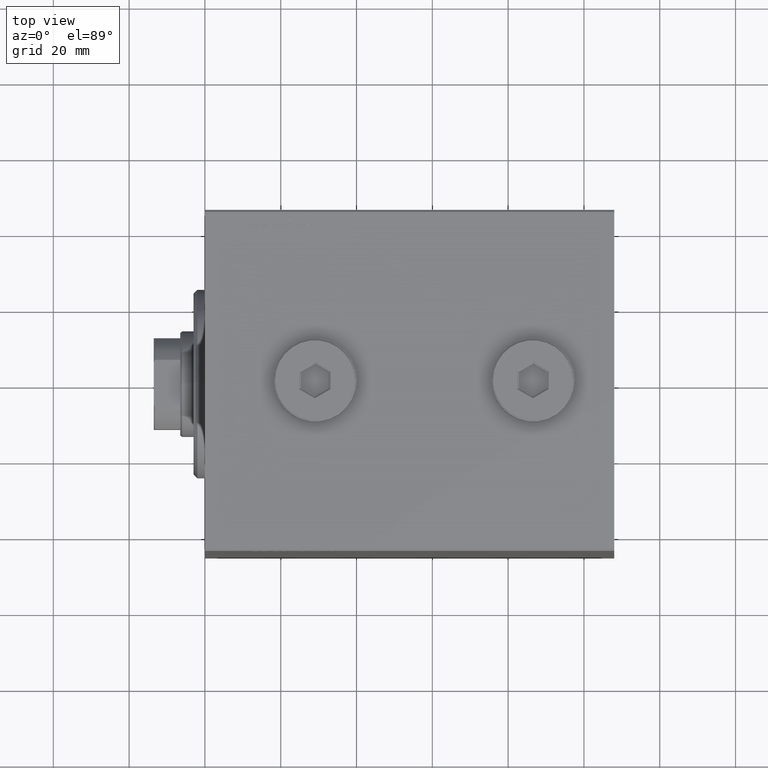
[diagram: clean part render]
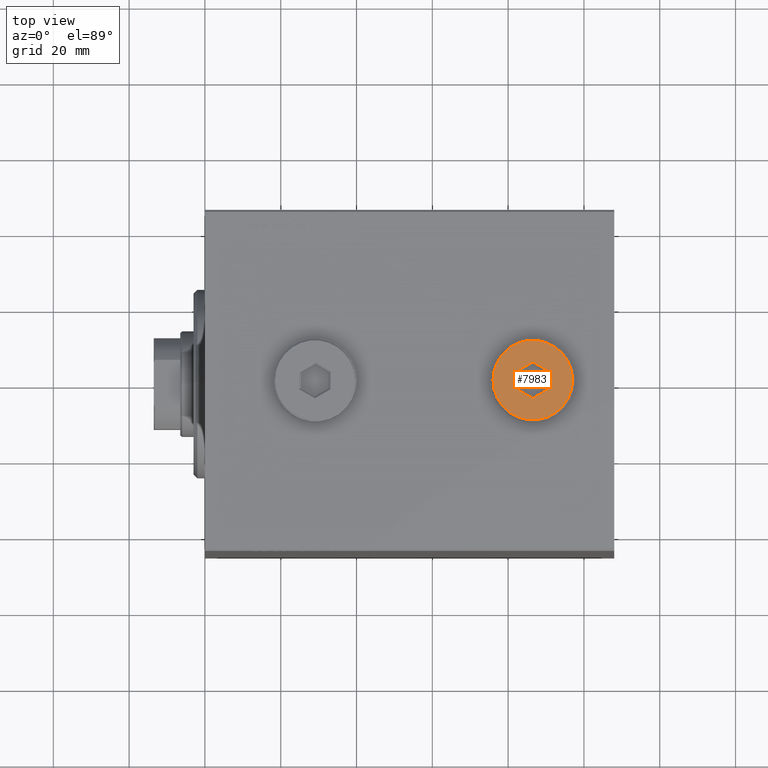
[diagram: same view with one face highlighted and labeled with its STEP entity id]
A machine part, top view. The second image highlights one B-rep face of the part: STEP entity #7983.
In plain terms, the highlighted planar face has unit normal (0, 0, 1).
Its self-contained STEP definition (entity closure, byte-faithful):
#517 = VECTOR ( 'NONE', #5359, 1000.000000000000000 ) ;
#1114 = EDGE_CURVE ( 'NONE', #35696, #22337, #14860, .T. ) ;
#1333 = VERTEX_POINT ( 'NONE', #39071 ) ;
#1653 = AXIS2_PLACEMENT_3D ( 'NONE', #33069, #29368, #18994 ) ;
#1733 = DIRECTION ( 'NONE',  ( 1.024305408229881337E-16, 1.000000000000000000, 0.000000000000000000 ) ) ;
#1890 = PLANE ( 'NONE',  #1653 ) ;
#2163 = DIRECTION ( 'NONE',  ( 1.024305408229881337E-16, -1.000000000000000000, 0.000000000000000000 ) ) ;
#2608 = CARTESIAN_POINT ( 'NONE',  ( 4.166666666666664298, -2.116950987028627384, 5.000000000000000000 ) ) ;
#2849 = LINE ( 'NONE', #2608, #12324 ) ;
#5359 = DIRECTION ( 'NONE',  ( -0.8660254037844387076, -0.4999999999999998335, 0.000000000000000000 ) ) ;
#5938 = EDGE_LOOP ( 'NONE', ( #14188, #38548 ) ) ;
#6276 = CARTESIAN_POINT ( 'NONE',  ( 10.50000000000000178, 1.316495309083404815E-15, 5.000000000000000000 ) ) ;
#7466 = VECTOR ( 'NONE', #22025, 1000.000000000000114 ) ;
#7947 = VERTEX_POINT ( 'NONE', #39326 ) ;
#7983 = ADVANCED_FACE ( 'NONE', ( #32611, #43251 ), #1890, .T. ) ;
#9043 = LINE ( 'NONE', #33281, #517 ) ;
#9595 = EDGE_CURVE ( 'NONE', #7947, #17942, #29332, .T. ) ;
#10484 = ORIENTED_EDGE ( 'NONE', *, *, #1114, .T. ) ;
#10655 = ORIENTED_EDGE ( 'NONE', *, *, #25619, .T. ) ;
#11766 = DIRECTION ( 'NONE',  ( 0.000000000000000000, 0.000000000000000000, 1.000000000000000000 ) ) ;
#12324 = VECTOR ( 'NONE', #2163, 1000.000000000000000 ) ;
#12700 = DIRECTION ( 'NONE',  ( -0.8660254037844384856, 0.5000000000000002220, 0.000000000000000000 ) ) ;
#14188 = ORIENTED_EDGE ( 'NONE', *, *, #29841, .T. ) ;
#14860 = LINE ( 'NONE', #43047, #7466 ) ;
#14947 = EDGE_CURVE ( 'NONE', #17178, #28400, #23914, .T. ) ;
#15061 = EDGE_CURVE ( 'NONE', #22337, #1333, #34111, .T. ) ;
#15288 = VECTOR ( 'NONE', #1733, 1000.000000000000000 ) ;
#15640 = DIRECTION ( 'NONE',  ( 0.000000000000000000, 0.000000000000000000, 1.000000000000000000 ) ) ;
#17178 = VERTEX_POINT ( 'NONE', #6276 ) ;
#17942 = VERTEX_POINT ( 'NONE', #37461 ) ;
#18994 = DIRECTION ( 'NONE',  ( 1.000000000000000000, 0.000000000000000000, -0.000000000000000000 ) ) ;
#20100 = CARTESIAN_POINT ( 'NONE',  ( -6.281144585932674641E-17, 4.811252243246876503, 5.000000000000000000 ) ) ;
#20512 = CARTESIAN_POINT ( 'NONE',  ( 3.916666666666664742, 2.549963688920845239, 5.000000000000000000 ) ) ;
#20799 = CARTESIAN_POINT ( 'NONE',  ( 4.166666666666664298, -2.405626121623439584, 5.000000000000000000 ) ) ;
#22025 = DIRECTION ( 'NONE',  ( 0.8660254037844388186, 0.4999999999999997780, 0.000000000000000000 ) ) ;
#22337 = VERTEX_POINT ( 'NONE', #20100 ) ;
#23341 = VERTEX_POINT ( 'NONE', #20799 ) ;
#23411 = ORIENTED_EDGE ( 'NONE', *, *, #25821, .T. ) ;
#23914 = CIRCLE ( 'NONE', #25410, 10.50000000000000178 ) ;
#25410 = AXIS2_PLACEMENT_3D ( 'NONE', #29749, #11766, #30204 ) ;
#25619 = EDGE_CURVE ( 'NONE', #1333, #23341, #2849, .T. ) ;
#25821 = EDGE_CURVE ( 'NONE', #23341, #7947, #9043, .T. ) ;
#26546 = EDGE_CURVE ( 'NONE', #17942, #35696, #36369, .T. ) ;
#28400 = VERTEX_POINT ( 'NONE', #31050 ) ;
#29078 = CIRCLE ( 'NONE', #33509, 10.50000000000000178 ) ;
#29332 = LINE ( 'NONE', #43447, #44440 ) ;
#29368 = DIRECTION ( 'NONE',  ( 0.000000000000000000, 0.000000000000000000, 1.000000000000000000 ) ) ;
#29481 = CARTESIAN_POINT ( 'NONE',  ( 0.000000000000000000, 0.000000000000000000, 5.000000000000000000 ) ) ;
#29749 = CARTESIAN_POINT ( 'NONE',  ( 0.000000000000000000, 0.000000000000000000, 5.000000000000000000 ) ) ;
#29841 = EDGE_CURVE ( 'NONE', #28400, #17178, #29078, .T. ) ;
#30204 = DIRECTION ( 'NONE',  ( 1.000000000000000000, 0.000000000000000000, 0.000000000000000000 ) ) ;
#31050 = CARTESIAN_POINT ( 'NONE',  ( -10.50000000000000178, 0.000000000000000000, 5.000000000000000000 ) ) ;
#31115 = DIRECTION ( 'NONE',  ( 0.8660254037844387076, -0.4999999999999998335, 0.000000000000000000 ) ) ;
#31311 = EDGE_LOOP ( 'NONE', ( #41394, #10484, #38415, #10655, #23411, #43935 ) ) ;
#32611 = FACE_BOUND ( 'NONE', #31311, .T. ) ;
#33069 = CARTESIAN_POINT ( 'NONE',  ( 0.000000000000000000, 0.000000000000000000, 5.000000000000000000 ) ) ;
#33281 = CARTESIAN_POINT ( 'NONE',  ( 0.2499999999999981681, -4.666914675949471736, 5.000000000000000000 ) ) ;
#33509 = AXIS2_PLACEMENT_3D ( 'NONE', #29481, #15640, #34242 ) ;
#34111 = LINE ( 'NONE', #20512, #38669 ) ;
#34242 = DIRECTION ( 'NONE',  ( 1.000000000000000000, 0.000000000000000000, 0.000000000000000000 ) ) ;
#35696 = VERTEX_POINT ( 'NONE', #43244 ) ;
#36369 = LINE ( 'NONE', #40763, #15288 ) ;
#37461 = CARTESIAN_POINT ( 'NONE',  ( -4.166666666666665186, -2.405626121623437363, 5.000000000000000000 ) ) ;
#38415 = ORIENTED_EDGE ( 'NONE', *, *, #15061, .T. ) ;
#38548 = ORIENTED_EDGE ( 'NONE', *, *, #14947, .T. ) ;
#38669 = VECTOR ( 'NONE', #31115, 1000.000000000000000 ) ;
#39071 = CARTESIAN_POINT ( 'NONE',  ( 4.166666666666663410, 2.405626121623439584, 5.000000000000000000 ) ) ;
#39326 = CARTESIAN_POINT ( 'NONE',  ( -8.363929151985410416E-16, -4.811252243246877391, 5.000000000000000000 ) ) ;
#40763 = CARTESIAN_POINT ( 'NONE',  ( -4.166666666666664298, 2.116950987028627829, 5.000000000000000000 ) ) ;
#41394 = ORIENTED_EDGE ( 'NONE', *, *, #26546, .T. ) ;
#43047 = CARTESIAN_POINT ( 'NONE',  ( -0.2499999999999992506, 4.666914675949470848, 5.000000000000000000 ) ) ;
#43244 = CARTESIAN_POINT ( 'NONE',  ( -4.166666666666664298, 2.405626121623439584, 5.000000000000000000 ) ) ;
#43251 = FACE_OUTER_BOUND ( 'NONE', #5938, .T. ) ;
#43447 = CARTESIAN_POINT ( 'NONE',  ( -3.916666666666664742, -2.549963688920843907, 5.000000000000000000 ) ) ;
#43935 = ORIENTED_EDGE ( 'NONE', *, *, #9595, .T. ) ;
#44440 = VECTOR ( 'NONE', #12700, 1000.000000000000000 ) ;